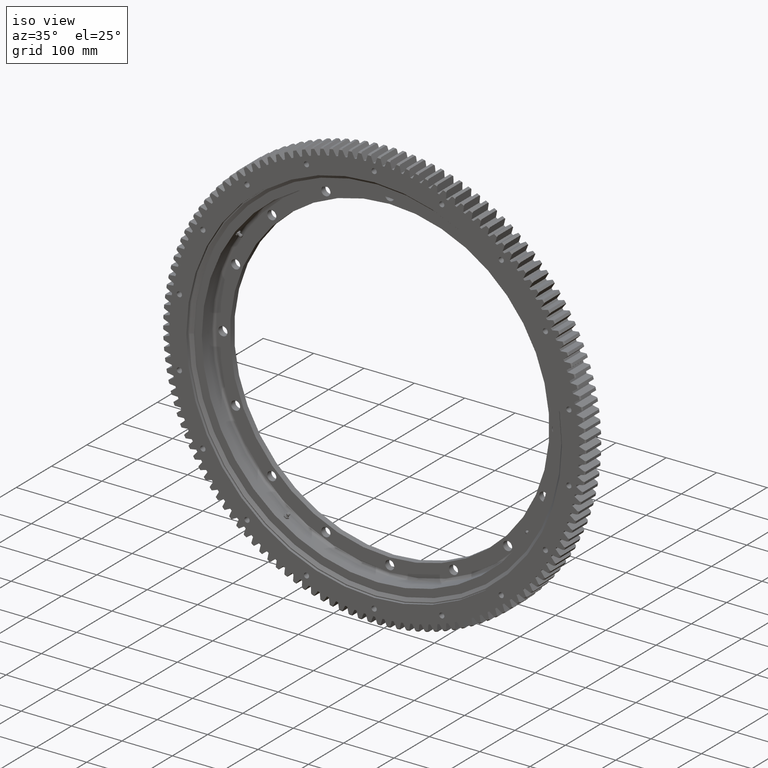
[diagram: clean part render]
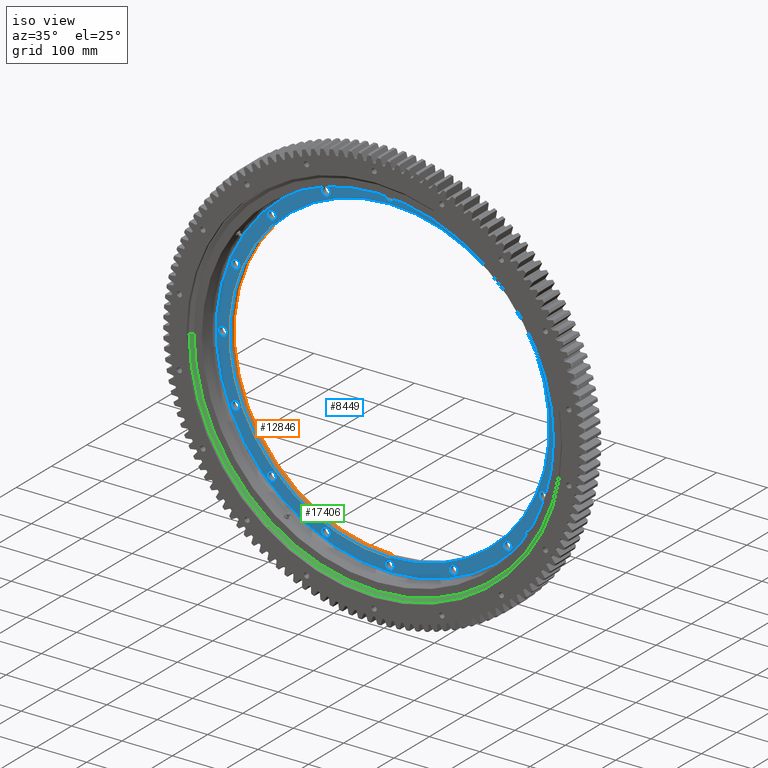
[diagram: same view with three faces highlighted in distinct colors, each labeled with its STEP entity id]
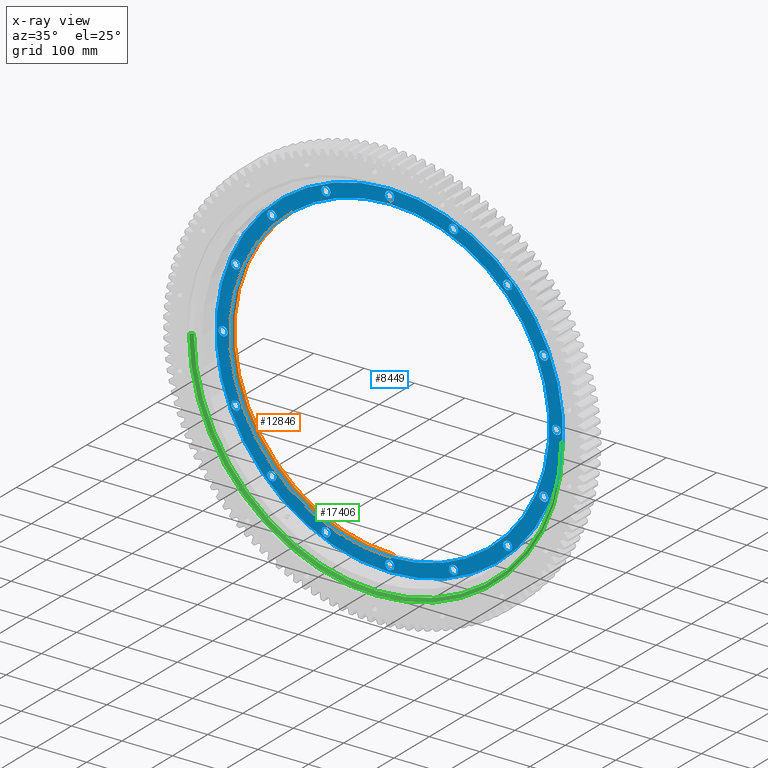
[diagram: x-ray of the same camera — body ghosted, the three highlighted faces saturated]
A machine part, iso view with three faces highlighted in distinct colors.
The next image is the same camera in x-ray (body ghosted, the three faces saturated) — at least one of them is partly hidden behind the body in this view.
Their STEP definitions:

[orange] entity #12846 — the highlighted cylindrical surface (partial cylindrical patch) has radius 317 mm, axis along (-0, 1, -0).
#820 = AXIS2_PLACEMENT_3D ( 'NONE', #8343, #28171, #11233 ) ;
#1589 = FACE_OUTER_BOUND ( 'NONE', #15918, .T. ) ;
#1838 = LINE ( 'NONE', #27328, #7568 ) ;
#2192 = CARTESIAN_POINT ( 'NONE',  ( 0.0000000000000000000, 27.99999999999997500, -1.609761843022099700E-015 ) ) ;
#2364 = VERTEX_POINT ( 'NONE', #34686 ) ;
#5351 = CARTESIAN_POINT ( 'NONE',  ( 0.0000000000000000000, 27.99999999999998200, 317.0000000000000000 ) ) ;
#5511 = ORIENTED_EDGE ( 'NONE', *, *, #32476, .T. ) ;
#6071 = VERTEX_POINT ( 'NONE', #5351 ) ;
#6457 = CARTESIAN_POINT ( 'NONE',  ( 0.0000000000000000000, 31.02910628019324300, -1.692367527159823000E-015 ) ) ;
#6599 = DIRECTION ( 'NONE',  ( -0.0000000000000000000, 1.000000000000000000, -2.727064569436389700E-017 ) ) ;
#7568 = VECTOR ( 'NONE', #6599, 1000.000000000000000 ) ;
#8343 = CARTESIAN_POINT ( 'NONE',  ( 0.0000000000000000000, 15.99999999999995900, -1.282514094689732800E-015 ) ) ;
#9209 = ORIENTED_EDGE ( 'NONE', *, *, #17603, .F. ) ;
#9342 = VERTEX_POINT ( 'NONE', #32580 ) ;
#9725 = VECTOR ( 'NONE', #23702, 1000.000000000000000 ) ;
#11233 = DIRECTION ( 'NONE',  ( 0.0000000000000000000, 5.472313804343239300E-017, 1.000000000000000000 ) ) ;
#11580 = ORIENTED_EDGE ( 'NONE', *, *, #26287, .T. ) ;
#12846 = ADVANCED_FACE ( 'NONE', ( #1589 ), #23339, .F. ) ;
#13895 = AXIS2_PLACEMENT_3D ( 'NONE', #6457, #17596, #17521 ) ;
#15528 = CARTESIAN_POINT ( 'NONE',  ( 3.882130353297110500E-014, 31.02910628019323600, -317.0000000000000600 ) ) ;
#15918 = EDGE_LOOP ( 'NONE', ( #5511, #11580, #30771, #9209 ) ) ;
#17521 = DIRECTION ( 'NONE',  ( 0.0000000000000000000, 2.188925521737295700E-017, 1.000000000000000000 ) ) ;
#17596 = DIRECTION ( 'NONE',  ( -0.0000000000000000000, 1.000000000000000000, -2.727064569436389700E-017 ) ) ;
#17603 = EDGE_CURVE ( 'NONE', #9342, #6071, #1838, .T. ) ;
#19825 = CIRCLE ( 'NONE', #29952, 317.0000000000000000 ) ;
#20399 = VERTEX_POINT ( 'NONE', #22121 ) ;
#21473 = CIRCLE ( 'NONE', #820, 317.0000000000000600 ) ;
#22121 = CARTESIAN_POINT ( 'NONE',  ( 3.882130353297109900E-014, 27.99999999999996800, -317.0000000000000000 ) ) ;
#22127 = EDGE_CURVE ( 'NONE', #20399, #6071, #19825, .T. ) ;
#23339 = CYLINDRICAL_SURFACE ( 'NONE', #13895, 317.0000000000000600 ) ;
#23702 = DIRECTION ( 'NONE',  ( -0.0000000000000000000, 1.000000000000000000, -2.727064569436389700E-017 ) ) ;
#26287 = EDGE_CURVE ( 'NONE', #2364, #20399, #33067, .T. ) ;
#27328 = CARTESIAN_POINT ( 'NONE',  ( 0.0000000000000000000, 31.02910628019325000, 317.0000000000000600 ) ) ;
#28171 = DIRECTION ( 'NONE',  ( 0.0000000000000000000, -1.000000000000000000, 5.298555410421252300E-017 ) ) ;
#29874 = DIRECTION ( 'NONE',  ( 0.0000000000000000000, 2.188925521737296000E-017, 1.000000000000000000 ) ) ;
#29952 = AXIS2_PLACEMENT_3D ( 'NONE', #2192, #30213, #29874 ) ;
#30213 = DIRECTION ( 'NONE',  ( -0.0000000000000000000, 1.000000000000000000, -2.727064569436389700E-017 ) ) ;
#30771 = ORIENTED_EDGE ( 'NONE', *, *, #22127, .T. ) ;
#32476 = EDGE_CURVE ( 'NONE', #9342, #2364, #21473, .T. ) ;
#32580 = CARTESIAN_POINT ( 'NONE',  ( 0.0000000000000000000, 15.99999999999997700, 317.0000000000000600 ) ) ;
#33067 = LINE ( 'NONE', #15528, #9725 ) ;
#34686 = CARTESIAN_POINT ( 'NONE',  ( 3.882130353297110500E-014, 15.99999999999994100, -317.0000000000000600 ) ) ;

[blue] entity #8449 — the highlighted planar face has unit normal (-0, 1, -0).
#116 = CARTESIAN_POINT ( 'NONE',  ( -305.8041252612372900, 15.99999999999995200, -117.6682161128416900 ) ) ;
#160 = DIRECTION ( 'NONE',  ( -0.0000000000000000000, 1.000000000000000000, -5.298555410421252300E-017 ) ) ;
#197 = CIRCLE ( 'NONE', #24135, 8.999999999999992900 ) ;
#593 = ORIENTED_EDGE ( 'NONE', *, *, #7598, .T. ) ;
#595 = CARTESIAN_POINT ( 'NONE',  ( -234.0523445727494000, 15.99999999999994500, -234.0523445727450800 ) ) ;
#706 = DIRECTION ( 'NONE',  ( -0.0000000000000000000, 1.000000000000000000, -5.298555410421252300E-017 ) ) ;
#820 = AXIS2_PLACEMENT_3D ( 'NONE', #8343, #28171, #11233 ) ;
#831 = DIRECTION ( 'NONE',  ( 0.0000000000000000000, 0.0000000000000000000, 1.000000000000000000 ) ) ;
#838 = ORIENTED_EDGE ( 'NONE', *, *, #32594, .T. ) ;
#870 = AXIS2_PLACEMENT_3D ( 'NONE', #11309, #31000, #14176 ) ;
#954 = CARTESIAN_POINT ( 'NONE',  ( 234.0523445727477800, 15.99999999999997700, 243.0523445727466800 ) ) ;
#1164 = CIRCLE ( 'NONE', #20450, 8.999999999999992900 ) ;
#1274 = AXIS2_PLACEMENT_3D ( 'NONE', #595, #706, #831 ) ;
#1309 = ORIENTED_EDGE ( 'NONE', *, *, #4842, .T. ) ;
#1511 = DIRECTION ( 'NONE',  ( -0.0000000000000000000, 1.000000000000000000, -5.298555410421252300E-017 ) ) ;
#1660 = CIRCLE ( 'NONE', #26426, 317.0000000000000600 ) ;
#1665 = EDGE_LOOP ( 'NONE', ( #18974, #4631 ) ) ;
#1716 = DIRECTION ( 'NONE',  ( -0.0000000000000000000, 1.000000000000000000, -5.298555410421252300E-017 ) ) ;
#1785 = AXIS2_PLACEMENT_3D ( 'NONE', #11337, #20497, #6484 ) ;
#1874 = EDGE_CURVE ( 'NONE', #20369, #13369, #1164, .T. ) ;
#1890 = CIRCLE ( 'NONE', #27425, 8.999999999999980500 ) ;
#1907 = CIRCLE ( 'NONE', #11063, 8.999999999999992900 ) ;
#1908 = CARTESIAN_POINT ( 'NONE',  ( -126.6682161128406000, 15.99999999999997300, 305.8041252612377400 ) ) ;
#2004 = DIRECTION ( 'NONE',  ( -0.0000000000000000000, 1.000000000000000000, -5.298555410421252300E-017 ) ) ;
#2084 = CARTESIAN_POINT ( 'NONE',  ( -234.0523445727494000, 15.99999999999994500, -243.0523445727450800 ) ) ;
#2137 = ORIENTED_EDGE ( 'NONE', *, *, #12037, .T. ) ;
#2211 = DIRECTION ( 'NONE',  ( -0.0000000000000000000, 1.000000000000000000, -5.298555410421252300E-017 ) ) ;
#2364 = VERTEX_POINT ( 'NONE', #34686 ) ;
#2515 = VERTEX_POINT ( 'NONE', #7676 ) ;
#2560 = ORIENTED_EDGE ( 'NONE', *, *, #23203, .T. ) ;
#2693 = CIRCLE ( 'NONE', #21119, 9.000000000000007100 ) ;
#2738 = DIRECTION ( 'NONE',  ( -0.0000000000000000000, 1.000000000000000000, -5.298555410421252300E-017 ) ) ;
#2851 = CIRCLE ( 'NONE', #18424, 8.999999999999994700 ) ;
#2915 = VERTEX_POINT ( 'NONE', #954 ) ;
#3001 = CIRCLE ( 'NONE', #31508, 8.999999999999980500 ) ;
#3111 = CARTESIAN_POINT ( 'NONE',  ( -126.6682161128472600, 15.99999999999994100, -314.8041252612348400 ) ) ;
#3373 = EDGE_CURVE ( 'NONE', #30341, #6914, #35016, .T. ) ;
#3390 = CARTESIAN_POINT ( 'NONE',  ( 234.0523445727477800, 15.99999999999997700, 234.0523445727467000 ) ) ;
#3561 = VERTEX_POINT ( 'NONE', #11101 ) ;
#3578 = CARTESIAN_POINT ( 'NONE',  ( -234.0523445727494000, 15.99999999999994500, -234.0523445727450800 ) ) ;
#3756 = CARTESIAN_POINT ( 'NONE',  ( 126.6682161128450200, 15.99999999999997300, 314.8041252612358700 ) ) ;
#4126 = CIRCLE ( 'NONE', #34330, 8.999999999999980500 ) ;
#4171 = CARTESIAN_POINT ( 'NONE',  ( 126.6682161128450200, 15.99999999999997300, 305.8041252612358700 ) ) ;
#4538 = ORIENTED_EDGE ( 'NONE', *, *, #32476, .F. ) ;
#4631 = ORIENTED_EDGE ( 'NONE', *, *, #22922, .T. ) ;
#4842 = EDGE_CURVE ( 'NONE', #11431, #16179, #1907, .T. ) ;
#4880 = DIRECTION ( 'NONE',  ( 0.0000000000000000000, 0.0000000000000000000, 1.000000000000000000 ) ) ;
#5128 = AXIS2_PLACEMENT_3D ( 'NONE', #5508, #5544, #5618 ) ;
#5297 = CARTESIAN_POINT ( 'NONE',  ( 234.0523445727477800, 15.99999999999997700, 225.0523445727467300 ) ) ;
#5313 = DIRECTION ( 'NONE',  ( 0.0000000000000000000, 0.0000000000000000000, 1.000000000000000000 ) ) ;
#5380 = DIRECTION ( 'NONE',  ( -0.0000000000000000000, 1.000000000000000000, -5.298555410421252300E-017 ) ) ;
#5508 = CARTESIAN_POINT ( 'NONE',  ( -305.8041252612372900, 15.99999999999995200, -126.6682161128416800 ) ) ;
#5544 = DIRECTION ( 'NONE',  ( -0.0000000000000000000, 1.000000000000000000, -5.298555410421252300E-017 ) ) ;
#5588 = AXIS2_PLACEMENT_3D ( 'NONE', #4171, #35547, #4880 ) ;
#5618 = DIRECTION ( 'NONE',  ( 0.0000000000000000000, 0.0000000000000000000, 1.000000000000000000 ) ) ;
#5668 = EDGE_LOOP ( 'NONE', ( #7781, #24343 ) ) ;
#6073 = EDGE_CURVE ( 'NONE', #35778, #32775, #9795, .T. ) ;
#6130 = ORIENTED_EDGE ( 'NONE', *, *, #20659, .T. ) ;
#6198 = FACE_BOUND ( 'NONE', #32044, .T. ) ;
#6200 = DIRECTION ( 'NONE',  ( 0.0000000000000000000, 0.0000000000000000000, 1.000000000000000000 ) ) ;
#6430 = CARTESIAN_POINT ( 'NONE',  ( -331.0000000000000000, 15.99999999999996300, 3.617841683029857800E-012 ) ) ;
#6484 = DIRECTION ( 'NONE',  ( 0.0000000000000000000, 0.0000000000000000000, 1.000000000000000000 ) ) ;
#6524 = AXIS2_PLACEMENT_3D ( 'NONE', #22767, #22811, #22137 ) ;
#6614 = AXIS2_PLACEMENT_3D ( 'NONE', #13540, #35381, #15660 ) ;
#6679 = DIRECTION ( 'NONE',  ( 0.0000000000000000000, 0.0000000000000000000, 1.000000000000000000 ) ) ;
#6914 = VERTEX_POINT ( 'NONE', #22360 ) ;
#6962 = VERTEX_POINT ( 'NONE', #20533 ) ;
#6999 = CARTESIAN_POINT ( 'NONE',  ( -126.6682161128406000, 15.99999999999997300, 305.8041252612377400 ) ) ;
#7124 = FACE_BOUND ( 'NONE', #35526, .T. ) ;
#7307 = DIRECTION ( 'NONE',  ( 0.0000000000000000000, 5.298555410421252300E-017, 1.000000000000000000 ) ) ;
#7376 = VERTEX_POINT ( 'NONE', #116 ) ;
#7384 = DIRECTION ( 'NONE',  ( -0.0000000000000000000, 1.000000000000000000, -5.298555410421252300E-017 ) ) ;
#7479 = DIRECTION ( 'NONE',  ( 0.0000000000000000000, 0.0000000000000000000, 1.000000000000000000 ) ) ;
#7598 = EDGE_CURVE ( 'NONE', #7376, #16621, #16390, .T. ) ;
#7672 = CARTESIAN_POINT ( 'NONE',  ( 126.6682161128427100, 15.99999999999994100, -314.8041252612367800 ) ) ;
#7676 = CARTESIAN_POINT ( 'NONE',  ( 4.773959005888173100E-012, 15.99999999999997300, 340.0000000000000000 ) ) ;
#7781 = ORIENTED_EDGE ( 'NONE', *, *, #6073, .T. ) ;
#7783 = DIRECTION ( 'NONE',  ( 0.0000000000000000000, 0.0000000000000000000, 1.000000000000000000 ) ) ;
#7848 = DIRECTION ( 'NONE',  ( 0.0000000000000000000, -1.000000000000000000, 5.298555410421252300E-017 ) ) ;
#7902 = VERTEX_POINT ( 'NONE', #27717 ) ;
#7930 = EDGE_CURVE ( 'NONE', #2515, #8919, #17725, .T. ) ;
#7969 = CARTESIAN_POINT ( 'NONE',  ( -305.8041252612343900, 15.99999999999996600, 117.6682161128483400 ) ) ;
#8000 = FACE_BOUND ( 'NONE', #19085, .T. ) ;
#8070 = EDGE_CURVE ( 'NONE', #3561, #17799, #26539, .T. ) ;
#8139 = CARTESIAN_POINT ( 'NONE',  ( -331.0000000000000000, 15.99999999999996300, 3.617841683029857800E-012 ) ) ;
#8268 = VERTEX_POINT ( 'NONE', #9319 ) ;
#8292 = ORIENTED_EDGE ( 'NONE', *, *, #7930, .T. ) ;
#8343 = CARTESIAN_POINT ( 'NONE',  ( 0.0000000000000000000, 15.99999999999995900, -1.282514094689732800E-015 ) ) ;
#8391 = VERTEX_POINT ( 'NONE', #28535 ) ;
#8449 = ADVANCED_FACE ( 'NONE', ( #24018, #9793, #8000, #30549, #23123, #29706, #22260, #14690, #7124, #36144, #28846, #21383, #13814, #6198, #35272, #27961, #20488, #12925 ), #27810, .F. ) ;
#8645 = ORIENTED_EDGE ( 'NONE', *, *, #15536, .T. ) ;
#8716 = CARTESIAN_POINT ( 'NONE',  ( -234.0523445727442600, 15.99999999999997700, 234.0523445727502000 ) ) ;
#8755 = CARTESIAN_POINT ( 'NONE',  ( 331.0000000000000000, 15.99999999999996300, -1.307352358637666400E-012 ) ) ;
#8810 = VERTEX_POINT ( 'NONE', #9194 ) ;
#8816 = EDGE_CURVE ( 'NONE', #8956, #10328, #25761, .T. ) ;
#8865 = DIRECTION ( 'NONE',  ( -0.0000000000000000000, 1.000000000000000000, -5.298555410421252300E-017 ) ) ;
#8919 = VERTEX_POINT ( 'NONE', #25966 ) ;
#8956 = VERTEX_POINT ( 'NONE', #13721 ) ;
#9079 = CIRCLE ( 'NONE', #21070, 8.999999999999992900 ) ;
#9174 = DIRECTION ( 'NONE',  ( 0.0000000000000000000, 0.0000000000000000000, 1.000000000000000000 ) ) ;
#9194 = CARTESIAN_POINT ( 'NONE',  ( -234.0523445727442600, 15.99999999999997700, 243.0523445727501700 ) ) ;
#9279 = EDGE_LOOP ( 'NONE', ( #2137, #33400 ) ) ;
#9319 = CARTESIAN_POINT ( 'NONE',  ( 305.8041252612354100, 15.99999999999995200, -135.6682161128460400 ) ) ;
#9342 = VERTEX_POINT ( 'NONE', #32580 ) ;
#9359 = DIRECTION ( 'NONE',  ( 0.0000000000000000000, 0.0000000000000000000, 1.000000000000000000 ) ) ;
#9543 = DIRECTION ( 'NONE',  ( 0.0000000000000000000, 0.0000000000000000000, 1.000000000000000000 ) ) ;
#9672 = DIRECTION ( 'NONE',  ( 0.0000000000000000000, 0.0000000000000000000, 1.000000000000000000 ) ) ;
#9698 = CARTESIAN_POINT ( 'NONE',  ( 305.8041252612354100, 15.99999999999995200, -126.6682161128460700 ) ) ;
#9741 = DIRECTION ( 'NONE',  ( -0.0000000000000000000, 1.000000000000000000, -5.298555410421252300E-017 ) ) ;
#9793 = FACE_BOUND ( 'NONE', #22554, .T. ) ;
#9795 = CIRCLE ( 'NONE', #29574, 9.000000000000007100 ) ;
#9861 = DIRECTION ( 'NONE',  ( 0.0000000000000000000, 0.0000000000000000000, 1.000000000000000000 ) ) ;
#10155 = EDGE_CURVE ( 'NONE', #10328, #8956, #19505, .T. ) ;
#10328 = VERTEX_POINT ( 'NONE', #3111 ) ;
#10777 = EDGE_CURVE ( 'NONE', #8810, #26498, #35132, .T. ) ;
#10946 = EDGE_CURVE ( 'NONE', #2364, #9342, #1660, .T. ) ;
#10999 = VERTEX_POINT ( 'NONE', #32134 ) ;
#11063 = AXIS2_PLACEMENT_3D ( 'NONE', #8755, #8865, #9174 ) ;
#11101 = CARTESIAN_POINT ( 'NONE',  ( 126.6682161128450200, 15.99999999999997300, 296.8041252612358700 ) ) ;
#11233 = DIRECTION ( 'NONE',  ( 0.0000000000000000000, 5.472313804343239300E-017, 1.000000000000000000 ) ) ;
#11309 = CARTESIAN_POINT ( 'NONE',  ( 234.0523445727459100, 15.99999999999994500, -234.0523445727485800 ) ) ;
#11337 = CARTESIAN_POINT ( 'NONE',  ( 305.8041252612363800, 15.99999999999996600, 126.6682161128436200 ) ) ;
#11431 = VERTEX_POINT ( 'NONE', #29830 ) ;
#11812 = ORIENTED_EDGE ( 'NONE', *, *, #8070, .T. ) ;
#11984 = CARTESIAN_POINT ( 'NONE',  ( -305.8041252612372900, 15.99999999999995200, -135.6682161128416600 ) ) ;
#12019 = CARTESIAN_POINT ( 'NONE',  ( 0.0000000000000000000, 15.99999999999995900, -1.282514094689732800E-015 ) ) ;
#12037 = EDGE_CURVE ( 'NONE', #20752, #8268, #14910, .T. ) ;
#12113 = CARTESIAN_POINT ( 'NONE',  ( -234.0523445727442600, 15.99999999999997700, 225.0523445727502300 ) ) ;
#12257 = ORIENTED_EDGE ( 'NONE', *, *, #15362, .T. ) ;
#12925 = FACE_BOUND ( 'NONE', #33009, .T. ) ;
#13178 = DIRECTION ( 'NONE',  ( -0.0000000000000000000, 1.000000000000000000, -5.298555410421252300E-017 ) ) ;
#13281 = ORIENTED_EDGE ( 'NONE', *, *, #34339, .T. ) ;
#13341 = VERTEX_POINT ( 'NONE', #15701 ) ;
#13369 = VERTEX_POINT ( 'NONE', #22376 ) ;
#13540 = CARTESIAN_POINT ( 'NONE',  ( -126.6682161128472600, 15.99999999999994100, -305.8041252612348400 ) ) ;
#13721 = CARTESIAN_POINT ( 'NONE',  ( -126.6682161128472600, 15.99999999999994100, -296.8041252612348400 ) ) ;
#13744 = CARTESIAN_POINT ( 'NONE',  ( 234.0523445727459100, 15.99999999999994500, -225.0523445727486100 ) ) ;
#13750 = ORIENTED_EDGE ( 'NONE', *, *, #25274, .T. ) ;
#13814 = FACE_BOUND ( 'NONE', #1665, .T. ) ;
#13950 = CIRCLE ( 'NONE', #1785, 8.999999999999980500 ) ;
#14031 = ORIENTED_EDGE ( 'NONE', *, *, #23329, .T. ) ;
#14114 = DIRECTION ( 'NONE',  ( 0.0000000000000000000, 0.0000000000000000000, 1.000000000000000000 ) ) ;
#14176 = DIRECTION ( 'NONE',  ( 0.0000000000000000000, 0.0000000000000000000, 1.000000000000000000 ) ) ;
#14456 = CARTESIAN_POINT ( 'NONE',  ( -126.6682161128406000, 15.99999999999997300, 314.8041252612377400 ) ) ;
#14690 = FACE_BOUND ( 'NONE', #22258, .T. ) ;
#14788 = CARTESIAN_POINT ( 'NONE',  ( 234.0523445727477800, 15.99999999999997700, 234.0523445727467000 ) ) ;
#14910 = CIRCLE ( 'NONE', #27390, 8.999999999999994700 ) ;
#14984 = DIRECTION ( 'NONE',  ( -0.0000000000000000000, 1.000000000000000000, -5.298555410421252300E-017 ) ) ;
#15055 = AXIS2_PLACEMENT_3D ( 'NONE', #6999, #26852, #9861 ) ;
#15267 = DIRECTION ( 'NONE',  ( 0.0000000000000000000, 5.472313804343239300E-017, 1.000000000000000000 ) ) ;
#15276 = CARTESIAN_POINT ( 'NONE',  ( -2.462597020833762200E-012, 15.99999999999994100, -331.0000000000000000 ) ) ;
#15362 = EDGE_CURVE ( 'NONE', #17799, #3561, #34881, .T. ) ;
#15527 = ORIENTED_EDGE ( 'NONE', *, *, #10946, .F. ) ;
#15536 = EDGE_CURVE ( 'NONE', #31836, #2915, #26711, .T. ) ;
#15660 = DIRECTION ( 'NONE',  ( 0.0000000000000000000, 0.0000000000000000000, 1.000000000000000000 ) ) ;
#15701 = CARTESIAN_POINT ( 'NONE',  ( -2.461494838714529600E-012, 15.99999999999994100, -340.0000000000000000 ) ) ;
#15832 = CIRCLE ( 'NONE', #27089, 8.999999999999980500 ) ;
#15844 = ORIENTED_EDGE ( 'NONE', *, *, #28327, .T. ) ;
#16013 = EDGE_CURVE ( 'NONE', #31272, #10999, #26340, .T. ) ;
#16126 = CARTESIAN_POINT ( 'NONE',  ( -126.6682161128472600, 15.99999999999994100, -305.8041252612348400 ) ) ;
#16179 = VERTEX_POINT ( 'NONE', #24760 ) ;
#16364 = EDGE_LOOP ( 'NONE', ( #18661, #6130 ) ) ;
#16388 = AXIS2_PLACEMENT_3D ( 'NONE', #22425, #5380, #25265 ) ;
#16390 = CIRCLE ( 'NONE', #21633, 8.999999999999994700 ) ;
#16621 = VERTEX_POINT ( 'NONE', #11984 ) ;
#16799 = ORIENTED_EDGE ( 'NONE', *, *, #35527, .T. ) ;
#16836 = DIRECTION ( 'NONE',  ( 0.0000000000000000000, 0.0000000000000000000, 1.000000000000000000 ) ) ;
#17210 = CARTESIAN_POINT ( 'NONE',  ( 234.0523445727459100, 15.99999999999994500, -234.0523445727485800 ) ) ;
#17580 = DIRECTION ( 'NONE',  ( -0.0000000000000000000, 1.000000000000000000, -5.298555410421252300E-017 ) ) ;
#17725 = CIRCLE ( 'NONE', #33972, 9.000000000000007100 ) ;
#17747 = CARTESIAN_POINT ( 'NONE',  ( 126.6682161128450200, 15.99999999999997300, 305.8041252612358700 ) ) ;
#17799 = VERTEX_POINT ( 'NONE', #3756 ) ;
#18084 = CIRCLE ( 'NONE', #28758, 8.999999999999980500 ) ;
#18359 = DIRECTION ( 'NONE',  ( -0.0000000000000000000, 1.000000000000000000, -5.298555410421252300E-017 ) ) ;
#18424 = AXIS2_PLACEMENT_3D ( 'NONE', #18777, #1716, #21607 ) ;
#18595 = ORIENTED_EDGE ( 'NONE', *, *, #21412, .T. ) ;
#18661 = ORIENTED_EDGE ( 'NONE', *, *, #10777, .T. ) ;
#18777 = CARTESIAN_POINT ( 'NONE',  ( 305.8041252612354100, 15.99999999999995200, -126.6682161128460700 ) ) ;
#18834 = DIRECTION ( 'NONE',  ( -0.0000000000000000000, 1.000000000000000000, -5.298555410421252300E-017 ) ) ;
#18883 = CARTESIAN_POINT ( 'NONE',  ( 305.8041252612363800, 15.99999999999996600, 135.6682161128436000 ) ) ;
#18974 = ORIENTED_EDGE ( 'NONE', *, *, #1874, .T. ) ;
#19055 = CARTESIAN_POINT ( 'NONE',  ( -305.8041252612343900, 15.99999999999996600, 126.6682161128483400 ) ) ;
#19085 = EDGE_LOOP ( 'NONE', ( #838, #8645 ) ) ;
#19405 = CARTESIAN_POINT ( 'NONE',  ( 305.8041252612354100, 15.99999999999995200, -117.6682161128460700 ) ) ;
#19498 = CIRCLE ( 'NONE', #16388, 9.000000000000007100 ) ;
#19505 = CIRCLE ( 'NONE', #35867, 9.000000000000007100 ) ;
#19538 = ORIENTED_EDGE ( 'NONE', *, *, #25046, .T. ) ;
#19651 = AXIS2_PLACEMENT_3D ( 'NONE', #26359, #18834, #5313 ) ;
#19725 = AXIS2_PLACEMENT_3D ( 'NONE', #24888, #7848, #27704 ) ;
#20033 = DIRECTION ( 'NONE',  ( 0.0000000000000000000, 0.0000000000000000000, 1.000000000000000000 ) ) ;
#20065 = DIRECTION ( 'NONE',  ( 0.0000000000000000000, 0.0000000000000000000, 1.000000000000000000 ) ) ;
#20174 = DIRECTION ( 'NONE',  ( 0.0000000000000000000, 0.0000000000000000000, 1.000000000000000000 ) ) ;
#20204 = CARTESIAN_POINT ( 'NONE',  ( -305.8041252612343900, 15.99999999999996600, 126.6682161128483400 ) ) ;
#20272 = DIRECTION ( 'NONE',  ( -0.0000000000000000000, 1.000000000000000000, -5.298555410421252300E-017 ) ) ;
#20369 = VERTEX_POINT ( 'NONE', #32310 ) ;
#20395 = DIRECTION ( 'NONE',  ( -0.0000000000000000000, 1.000000000000000000, -5.298555410421252300E-017 ) ) ;
#20423 = DIRECTION ( 'NONE',  ( 0.0000000000000000000, 0.0000000000000000000, 1.000000000000000000 ) ) ;
#20450 = AXIS2_PLACEMENT_3D ( 'NONE', #8139, #14984, #9543 ) ;
#20488 = FACE_BOUND ( 'NONE', #34004, .T. ) ;
#20497 = DIRECTION ( 'NONE',  ( -0.0000000000000000000, 1.000000000000000000, -5.298555410421252300E-017 ) ) ;
#20533 = CARTESIAN_POINT ( 'NONE',  ( 305.8041252612363800, 15.99999999999996600, 117.6682161128436200 ) ) ;
#20659 = EDGE_CURVE ( 'NONE', #26498, #8810, #33004, .T. ) ;
#20741 = EDGE_CURVE ( 'NONE', #6914, #30341, #3001, .T. ) ;
#20752 = VERTEX_POINT ( 'NONE', #19405 ) ;
#21070 = AXIS2_PLACEMENT_3D ( 'NONE', #22951, #13178, #7783 ) ;
#21119 = AXIS2_PLACEMENT_3D ( 'NONE', #15276, #20395, #9672 ) ;
#21155 = DIRECTION ( 'NONE',  ( -0.0000000000000000000, 1.000000000000000000, -5.298555410421252300E-017 ) ) ;
#21299 = CARTESIAN_POINT ( 'NONE',  ( 0.0000000000000000000, 15.99999999999997700, 344.0000000000000000 ) ) ;
#21383 = FACE_BOUND ( 'NONE', #34457, .T. ) ;
#21412 = EDGE_CURVE ( 'NONE', #29606, #33257, #23835, .T. ) ;
#21473 = CIRCLE ( 'NONE', #820, 317.0000000000000600 ) ;
#21607 = DIRECTION ( 'NONE',  ( 0.0000000000000000000, 0.0000000000000000000, 1.000000000000000000 ) ) ;
#21633 = AXIS2_PLACEMENT_3D ( 'NONE', #28634, #2738, #22896 ) ;
#21854 = CIRCLE ( 'NONE', #6524, 9.000000000000007100 ) ;
#21878 = DIRECTION ( 'NONE',  ( 0.0000000000000000000, 0.0000000000000000000, 1.000000000000000000 ) ) ;
#22048 = ORIENTED_EDGE ( 'NONE', *, *, #22616, .T. ) ;
#22137 = DIRECTION ( 'NONE',  ( 0.0000000000000000000, 0.0000000000000000000, 1.000000000000000000 ) ) ;
#22143 = DIRECTION ( 'NONE',  ( 0.0000000000000000000, -1.000000000000000000, 5.298555410421252300E-017 ) ) ;
#22258 = EDGE_LOOP ( 'NONE', ( #18595, #22987 ) ) ;
#22260 = FACE_BOUND ( 'NONE', #24549, .T. ) ;
#22266 = ORIENTED_EDGE ( 'NONE', *, *, #24165, .T. ) ;
#22360 = CARTESIAN_POINT ( 'NONE',  ( -234.0523445727494000, 15.99999999999994500, -225.0523445727451100 ) ) ;
#22376 = CARTESIAN_POINT ( 'NONE',  ( -331.0000000000000000, 15.99999999999996300, -8.999999999996374500 ) ) ;
#22401 = CIRCLE ( 'NONE', #19651, 8.999999999999980500 ) ;
#22425 = CARTESIAN_POINT ( 'NONE',  ( -2.462597020833762200E-012, 15.99999999999994100, -331.0000000000000000 ) ) ;
#22554 = EDGE_LOOP ( 'NONE', ( #12257, #11812 ) ) ;
#22616 = EDGE_CURVE ( 'NONE', #16179, #11431, #9079, .T. ) ;
#22662 = CIRCLE ( 'NONE', #870, 8.999999999999980500 ) ;
#22767 = CARTESIAN_POINT ( 'NONE',  ( 126.6682161128427100, 15.99999999999994100, -305.8041252612367800 ) ) ;
#22811 = DIRECTION ( 'NONE',  ( -0.0000000000000000000, 1.000000000000000000, -5.298555410421252300E-017 ) ) ;
#22896 = DIRECTION ( 'NONE',  ( 0.0000000000000000000, 0.0000000000000000000, 1.000000000000000000 ) ) ;
#22916 = ORIENTED_EDGE ( 'NONE', *, *, #20741, .T. ) ;
#22922 = EDGE_CURVE ( 'NONE', #13369, #20369, #197, .T. ) ;
#22951 = CARTESIAN_POINT ( 'NONE',  ( 331.0000000000000000, 15.99999999999996300, -1.307352358637666400E-012 ) ) ;
#22987 = ORIENTED_EDGE ( 'NONE', *, *, #24645, .T. ) ;
#23097 = ORIENTED_EDGE ( 'NONE', *, *, #35255, .T. ) ;
#23123 = FACE_BOUND ( 'NONE', #26282, .T. ) ;
#23155 = VERTEX_POINT ( 'NONE', #18883 ) ;
#23203 = EDGE_CURVE ( 'NONE', #23155, #6962, #22401, .T. ) ;
#23240 = DIRECTION ( 'NONE',  ( -0.0000000000000000000, 1.000000000000000000, -5.298555410421252300E-017 ) ) ;
#23329 = EDGE_CURVE ( 'NONE', #6962, #23155, #13950, .T. ) ;
#23385 = CARTESIAN_POINT ( 'NONE',  ( 126.6682161128427100, 15.99999999999994100, -305.8041252612367800 ) ) ;
#23524 = DIRECTION ( 'NONE',  ( 0.0000000000000000000, 0.0000000000000000000, 1.000000000000000000 ) ) ;
#23835 = CIRCLE ( 'NONE', #31995, 9.000000000000007100 ) ;
#23916 = ORIENTED_EDGE ( 'NONE', *, *, #10155, .T. ) ;
#24018 = FACE_OUTER_BOUND ( 'NONE', #32794, .T. ) ;
#24068 = AXIS2_PLACEMENT_3D ( 'NONE', #8716, #21155, #6679 ) ;
#24135 = AXIS2_PLACEMENT_3D ( 'NONE', #6430, #18359, #20174 ) ;
#24165 = EDGE_CURVE ( 'NONE', #8391, #30931, #4126, .T. ) ;
#24343 = ORIENTED_EDGE ( 'NONE', *, *, #30776, .T. ) ;
#24404 = CARTESIAN_POINT ( 'NONE',  ( 4.773959005888173100E-012, 15.99999999999997300, 331.0000000000000000 ) ) ;
#24549 = EDGE_LOOP ( 'NONE', ( #13281, #15844 ) ) ;
#24645 = EDGE_CURVE ( 'NONE', #33257, #29606, #21854, .T. ) ;
#24682 = AXIS2_PLACEMENT_3D ( 'NONE', #24404, #7384, #27233 ) ;
#24760 = CARTESIAN_POINT ( 'NONE',  ( 331.0000000000000000, 15.99999999999996300, 8.999999999998683700 ) ) ;
#24888 = CARTESIAN_POINT ( 'NONE',  ( 0.0000000000000000000, 15.99999999999995900, -4.455116103649800300E-015 ) ) ;
#25046 = EDGE_CURVE ( 'NONE', #13341, #7902, #2693, .T. ) ;
#25265 = DIRECTION ( 'NONE',  ( 0.0000000000000000000, 0.0000000000000000000, 1.000000000000000000 ) ) ;
#25266 = DIRECTION ( 'NONE',  ( 0.0000000000000000000, 0.0000000000000000000, 1.000000000000000000 ) ) ;
#25274 = EDGE_CURVE ( 'NONE', #16621, #7376, #27540, .T. ) ;
#25761 = CIRCLE ( 'NONE', #6614, 9.000000000000007100 ) ;
#25900 = AXIS2_PLACEMENT_3D ( 'NONE', #17747, #34279, #23524 ) ;
#25966 = CARTESIAN_POINT ( 'NONE',  ( 4.775061188007405400E-012, 15.99999999999997300, 322.0000000000000000 ) ) ;
#26155 = DIRECTION ( 'NONE',  ( -0.0000000000000000000, 1.000000000000000000, -5.298555410421252300E-017 ) ) ;
#26282 = EDGE_LOOP ( 'NONE', ( #22048, #1309 ) ) ;
#26340 = CIRCLE ( 'NONE', #26999, 344.0000000000000000 ) ;
#26359 = CARTESIAN_POINT ( 'NONE',  ( 305.8041252612363800, 15.99999999999996600, 126.6682161128436200 ) ) ;
#26426 = AXIS2_PLACEMENT_3D ( 'NONE', #12019, #22143, #15267 ) ;
#26498 = VERTEX_POINT ( 'NONE', #12113 ) ;
#26539 = CIRCLE ( 'NONE', #25900, 9.000000000000007100 ) ;
#26711 = CIRCLE ( 'NONE', #30241, 8.999999999999980500 ) ;
#26852 = DIRECTION ( 'NONE',  ( -0.0000000000000000000, 1.000000000000000000, -5.298555410421252300E-017 ) ) ;
#26999 = AXIS2_PLACEMENT_3D ( 'NONE', #33023, #32396, #28191 ) ;
#27089 = AXIS2_PLACEMENT_3D ( 'NONE', #17210, #160, #20065 ) ;
#27233 = DIRECTION ( 'NONE',  ( 0.0000000000000000000, 0.0000000000000000000, 1.000000000000000000 ) ) ;
#27390 = AXIS2_PLACEMENT_3D ( 'NONE', #9698, #9741, #20423 ) ;
#27425 = AXIS2_PLACEMENT_3D ( 'NONE', #3390, #23240, #6200 ) ;
#27540 = CIRCLE ( 'NONE', #5128, 8.999999999999994700 ) ;
#27704 = DIRECTION ( 'NONE',  ( 0.0000000000000000000, 5.042800802258159900E-017, 1.000000000000000000 ) ) ;
#27717 = CARTESIAN_POINT ( 'NONE',  ( -2.462597020833762200E-012, 15.99999999999994100, -322.0000000000000000 ) ) ;
#27810 = PLANE ( 'NONE',  #30759 ) ;
#27892 = EDGE_LOOP ( 'NONE', ( #2560, #14031 ) ) ;
#27961 = FACE_BOUND ( 'NONE', #5668, .T. ) ;
#28110 = CARTESIAN_POINT ( 'NONE',  ( 0.0000000000000000000, 15.99999999999997700, 288.9999999999999400 ) ) ;
#28171 = DIRECTION ( 'NONE',  ( 0.0000000000000000000, -1.000000000000000000, 5.298555410421252300E-017 ) ) ;
#28191 = DIRECTION ( 'NONE',  ( 0.0000000000000000000, 5.042800802258159900E-017, 1.000000000000000000 ) ) ;
#28215 = ORIENTED_EDGE ( 'NONE', *, *, #16013, .T. ) ;
#28327 = EDGE_CURVE ( 'NONE', #35921, #35663, #15832, .T. ) ;
#28535 = CARTESIAN_POINT ( 'NONE',  ( -305.8041252612343900, 15.99999999999996600, 135.6682161128483100 ) ) ;
#28634 = CARTESIAN_POINT ( 'NONE',  ( -305.8041252612372900, 15.99999999999995200, -126.6682161128416800 ) ) ;
#28688 = CARTESIAN_POINT ( 'NONE',  ( 4.773959005888173100E-012, 15.99999999999997300, 331.0000000000000000 ) ) ;
#28758 = AXIS2_PLACEMENT_3D ( 'NONE', #19055, #2004, #21878 ) ;
#28846 = FACE_BOUND ( 'NONE', #34986, .T. ) ;
#29213 = ORIENTED_EDGE ( 'NONE', *, *, #3373, .T. ) ;
#29292 = EDGE_CURVE ( 'NONE', #30931, #8391, #18084, .T. ) ;
#29491 = ORIENTED_EDGE ( 'NONE', *, *, #29292, .T. ) ;
#29574 = AXIS2_PLACEMENT_3D ( 'NONE', #1908, #1511, #16836 ) ;
#29606 = VERTEX_POINT ( 'NONE', #34115 ) ;
#29706 = FACE_BOUND ( 'NONE', #9279, .T. ) ;
#29733 = CARTESIAN_POINT ( 'NONE',  ( -126.6682161128406000, 15.99999999999997300, 296.8041252612377400 ) ) ;
#29830 = CARTESIAN_POINT ( 'NONE',  ( 331.0000000000000000, 15.99999999999996300, -9.000000000001300300 ) ) ;
#30096 = DIRECTION ( 'NONE',  ( 0.0000000000000000000, 0.0000000000000000000, 1.000000000000000000 ) ) ;
#30241 = AXIS2_PLACEMENT_3D ( 'NONE', #14788, #31187, #7479 ) ;
#30254 = EDGE_CURVE ( 'NONE', #8268, #20752, #2851, .T. ) ;
#30341 = VERTEX_POINT ( 'NONE', #2084 ) ;
#30449 = CIRCLE ( 'NONE', #24682, 9.000000000000007100 ) ;
#30549 = FACE_BOUND ( 'NONE', #27892, .T. ) ;
#30759 = AXIS2_PLACEMENT_3D ( 'NONE', #28110, #17580, #7307 ) ;
#30776 = EDGE_CURVE ( 'NONE', #32775, #35778, #31095, .T. ) ;
#30869 = CIRCLE ( 'NONE', #19725, 344.0000000000000000 ) ;
#30931 = VERTEX_POINT ( 'NONE', #7969 ) ;
#31000 = DIRECTION ( 'NONE',  ( -0.0000000000000000000, 1.000000000000000000, -5.298555410421252300E-017 ) ) ;
#31095 = CIRCLE ( 'NONE', #15055, 9.000000000000007100 ) ;
#31187 = DIRECTION ( 'NONE',  ( -0.0000000000000000000, 1.000000000000000000, -5.298555410421252300E-017 ) ) ;
#31272 = VERTEX_POINT ( 'NONE', #21299 ) ;
#31508 = AXIS2_PLACEMENT_3D ( 'NONE', #3578, #32162, #30096 ) ;
#31836 = VERTEX_POINT ( 'NONE', #5297 ) ;
#31906 = DIRECTION ( 'NONE',  ( -0.0000000000000000000, 1.000000000000000000, -5.298555410421252300E-017 ) ) ;
#31995 = AXIS2_PLACEMENT_3D ( 'NONE', #23385, #31906, #9359 ) ;
#32044 = EDGE_LOOP ( 'NONE', ( #22266, #29491 ) ) ;
#32134 = CARTESIAN_POINT ( 'NONE',  ( 4.243401159045578600E-014, 15.99999999999994100, -344.0000000000000000 ) ) ;
#32156 = ORIENTED_EDGE ( 'NONE', *, *, #35676, .T. ) ;
#32162 = DIRECTION ( 'NONE',  ( -0.0000000000000000000, 1.000000000000000000, -5.298555410421252300E-017 ) ) ;
#32310 = CARTESIAN_POINT ( 'NONE',  ( -331.0000000000000000, 15.99999999999996300, 9.000000000003611300 ) ) ;
#32396 = DIRECTION ( 'NONE',  ( 0.0000000000000000000, -1.000000000000000000, 5.298555410421252300E-017 ) ) ;
#32476 = EDGE_CURVE ( 'NONE', #9342, #2364, #21473, .T. ) ;
#32580 = CARTESIAN_POINT ( 'NONE',  ( 0.0000000000000000000, 15.99999999999997700, 317.0000000000000600 ) ) ;
#32594 = EDGE_CURVE ( 'NONE', #2915, #31836, #1890, .T. ) ;
#32775 = VERTEX_POINT ( 'NONE', #29733 ) ;
#32794 = EDGE_LOOP ( 'NONE', ( #28215, #23097 ) ) ;
#33004 = CIRCLE ( 'NONE', #24068, 8.999999999999980500 ) ;
#33009 = EDGE_LOOP ( 'NONE', ( #4538, #15527 ) ) ;
#33023 = CARTESIAN_POINT ( 'NONE',  ( 0.0000000000000000000, 15.99999999999995900, -4.455116103649800300E-015 ) ) ;
#33257 = VERTEX_POINT ( 'NONE', #7672 ) ;
#33400 = ORIENTED_EDGE ( 'NONE', *, *, #30254, .T. ) ;
#33972 = AXIS2_PLACEMENT_3D ( 'NONE', #28688, #34747, #14114 ) ;
#34004 = EDGE_LOOP ( 'NONE', ( #8292, #16799 ) ) ;
#34115 = CARTESIAN_POINT ( 'NONE',  ( 126.6682161128427100, 15.99999999999994100, -296.8041252612367800 ) ) ;
#34279 = DIRECTION ( 'NONE',  ( -0.0000000000000000000, 1.000000000000000000, -5.298555410421252300E-017 ) ) ;
#34330 = AXIS2_PLACEMENT_3D ( 'NONE', #20204, #20272, #20033 ) ;
#34339 = EDGE_CURVE ( 'NONE', #35663, #35921, #22662, .T. ) ;
#34457 = EDGE_LOOP ( 'NONE', ( #593, #13750 ) ) ;
#34623 = CARTESIAN_POINT ( 'NONE',  ( 234.0523445727459100, 15.99999999999994500, -243.0523445727485800 ) ) ;
#34686 = CARTESIAN_POINT ( 'NONE',  ( 3.882130353297110500E-014, 15.99999999999994100, -317.0000000000000600 ) ) ;
#34747 = DIRECTION ( 'NONE',  ( -0.0000000000000000000, 1.000000000000000000, -5.298555410421252300E-017 ) ) ;
#34881 = CIRCLE ( 'NONE', #5588, 9.000000000000007100 ) ;
#34986 = EDGE_LOOP ( 'NONE', ( #22916, #29213 ) ) ;
#34997 = CARTESIAN_POINT ( 'NONE',  ( -234.0523445727442600, 15.99999999999997700, 234.0523445727502000 ) ) ;
#35006 = EDGE_LOOP ( 'NONE', ( #36450, #23916 ) ) ;
#35016 = CIRCLE ( 'NONE', #1274, 8.999999999999980500 ) ;
#35132 = CIRCLE ( 'NONE', #36345, 8.999999999999980500 ) ;
#35255 = EDGE_CURVE ( 'NONE', #10999, #31272, #30869, .T. ) ;
#35272 = FACE_BOUND ( 'NONE', #16364, .T. ) ;
#35355 = DIRECTION ( 'NONE',  ( 0.0000000000000000000, 0.0000000000000000000, 1.000000000000000000 ) ) ;
#35381 = DIRECTION ( 'NONE',  ( -0.0000000000000000000, 1.000000000000000000, -5.298555410421252300E-017 ) ) ;
#35526 = EDGE_LOOP ( 'NONE', ( #32156, #19538 ) ) ;
#35527 = EDGE_CURVE ( 'NONE', #8919, #2515, #30449, .T. ) ;
#35547 = DIRECTION ( 'NONE',  ( -0.0000000000000000000, 1.000000000000000000, -5.298555410421252300E-017 ) ) ;
#35663 = VERTEX_POINT ( 'NONE', #13744 ) ;
#35676 = EDGE_CURVE ( 'NONE', #7902, #13341, #19498, .T. ) ;
#35778 = VERTEX_POINT ( 'NONE', #14456 ) ;
#35867 = AXIS2_PLACEMENT_3D ( 'NONE', #16126, #2211, #25266 ) ;
#35921 = VERTEX_POINT ( 'NONE', #34623 ) ;
#36144 = FACE_BOUND ( 'NONE', #35006, .T. ) ;
#36345 = AXIS2_PLACEMENT_3D ( 'NONE', #34997, #26155, #35355 ) ;
#36450 = ORIENTED_EDGE ( 'NONE', *, *, #8816, .T. ) ;

[green] entity #17406 — the highlighted conical surface has half-angle 49.914 deg.
#31 = DIRECTION ( 'NONE',  ( -1.000000000000000000, 1.807251325212300700E-016, 0.0000000000000000000 ) ) ;
#206 = AXIS2_PLACEMENT_3D ( 'NONE', #14124, #18227, #14669 ) ;
#857 = CARTESIAN_POINT ( 'NONE',  ( -8.854313453393022800E-015, -18.00000000000006400, 0.0000000000000000000 ) ) ;
#4376 = DIRECTION ( 'NONE',  ( 1.786923420260216300E-016, 1.000000000000000000, -0.0000000000000000000 ) ) ;
#5032 = CARTESIAN_POINT ( 'NONE',  ( -364.7500000000000000, -18.00000000000000000, 4.503638603864391400E-014 ) ) ;
#5945 = ORIENTED_EDGE ( 'NONE', *, *, #6983, .F. ) ;
#6134 = AXIS2_PLACEMENT_3D ( 'NONE', #857, #4376, #31 ) ;
#6983 = EDGE_CURVE ( 'NONE', #8434, #24064, #23507, .T. ) ;
#7845 = DIRECTION ( 'NONE',  ( -0.7650765054985618800, -0.6439393921279462600, 9.369484935616560300E-017 ) ) ;
#8434 = VERTEX_POINT ( 'NONE', #25723 ) ;
#10258 = DIRECTION ( 'NONE',  ( 0.7650765054985616500, -0.6439393921279466000, 0.0000000000000000000 ) ) ;
#10746 = CARTESIAN_POINT ( 'NONE',  ( -370.7500000000000000, -23.04999999999993000, 4.540378007838811900E-014 ) ) ;
#11885 = VERTEX_POINT ( 'NONE', #5032 ) ;
#12258 = ORIENTED_EDGE ( 'NONE', *, *, #32411, .T. ) ;
#12951 = CONICAL_SURFACE ( 'NONE', #206, 370.7500000000000000, 0.8711601305813171400 ) ;
#13648 = CARTESIAN_POINT ( 'NONE',  ( 364.7500000000000000, -18.00000000000013100, 0.0000000000000000000 ) ) ;
#13701 = VECTOR ( 'NONE', #10258, 1000.000000000000200 ) ;
#14124 = CARTESIAN_POINT ( 'NONE',  ( -9.756709780624421200E-015, -23.04999999999999400, 0.0000000000000000000 ) ) ;
#14542 = ORIENTED_EDGE ( 'NONE', *, *, #35559, .F. ) ;
#14669 = DIRECTION ( 'NONE',  ( 1.000000000000000000, -1.778003832423969500E-016, 0.0000000000000000000 ) ) ;
#17406 = ADVANCED_FACE ( 'NONE', ( #21409 ), #12951, .F. ) ;
#17498 = LINE ( 'NONE', #10746, #29799 ) ;
#18227 = DIRECTION ( 'NONE',  ( -1.786923420260216300E-016, -1.000000000000000000, 0.0000000000000000000 ) ) ;
#18693 = EDGE_CURVE ( 'NONE', #30359, #11885, #36143, .T. ) ;
#18866 = CARTESIAN_POINT ( 'NONE',  ( 370.7500000000000000, -23.05000000000006100, 0.0000000000000000000 ) ) ;
#19594 = CARTESIAN_POINT ( 'NONE',  ( -370.7500000000000000, -23.04999999999993000, 4.540378007838811900E-014 ) ) ;
#20049 = DIRECTION ( 'NONE',  ( -1.000000000000000000, 1.778003832423969500E-016, 0.0000000000000000000 ) ) ;
#20059 = DIRECTION ( 'NONE',  ( 1.786923420260216300E-016, 1.000000000000000000, -0.0000000000000000000 ) ) ;
#20107 = CARTESIAN_POINT ( 'NONE',  ( -9.756709780624421200E-015, -23.04999999999999400, 0.0000000000000000000 ) ) ;
#21409 = FACE_OUTER_BOUND ( 'NONE', #24995, .T. ) ;
#23507 = CIRCLE ( 'NONE', #34842, 370.7500000000000000 ) ;
#24064 = VERTEX_POINT ( 'NONE', #19594 ) ;
#24995 = EDGE_LOOP ( 'NONE', ( #32029, #12258, #5945, #14542 ) ) ;
#25723 = CARTESIAN_POINT ( 'NONE',  ( 370.7500000000000000, -23.05000000000006100, 0.0000000000000000000 ) ) ;
#28736 = LINE ( 'NONE', #18866, #13701 ) ;
#29799 = VECTOR ( 'NONE', #7845, 1000.000000000000200 ) ;
#30359 = VERTEX_POINT ( 'NONE', #13648 ) ;
#32029 = ORIENTED_EDGE ( 'NONE', *, *, #18693, .T. ) ;
#32411 = EDGE_CURVE ( 'NONE', #11885, #24064, #17498, .T. ) ;
#34842 = AXIS2_PLACEMENT_3D ( 'NONE', #20107, #20059, #20049 ) ;
#35559 = EDGE_CURVE ( 'NONE', #30359, #8434, #28736, .T. ) ;
#36143 = CIRCLE ( 'NONE', #6134, 364.7500000000000000 ) ;